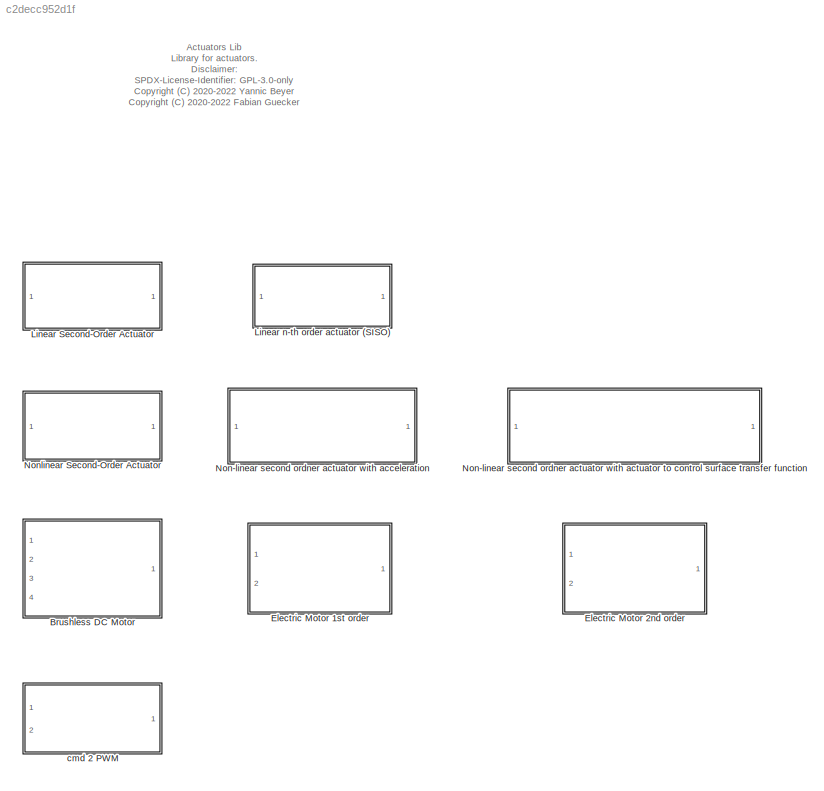
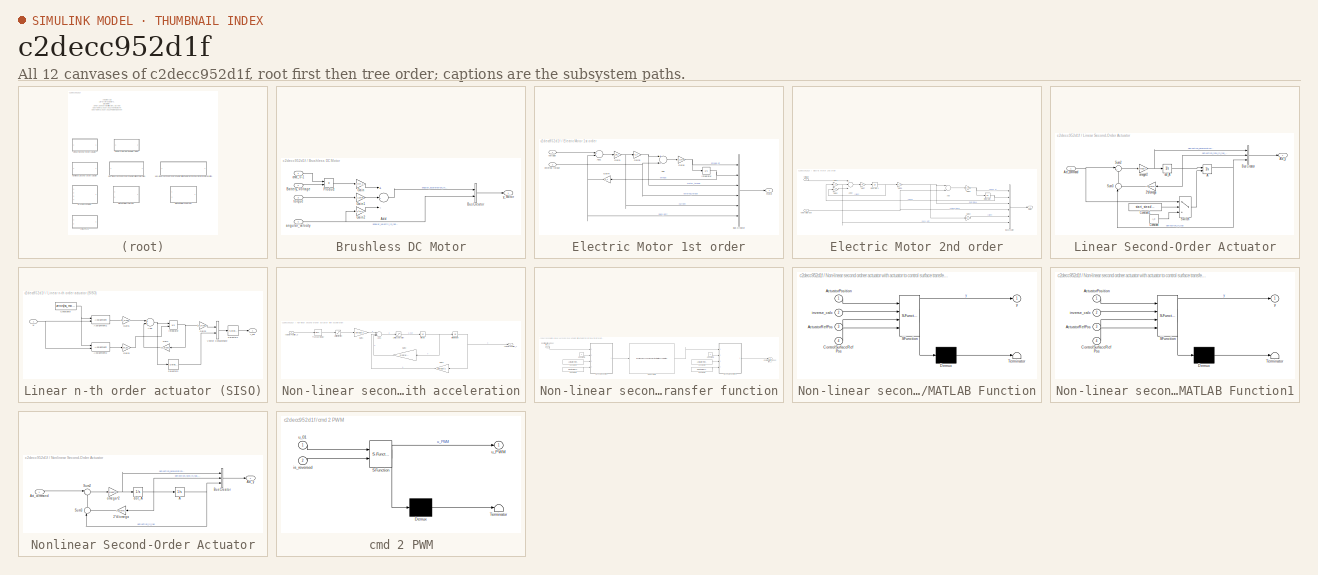
[diagram: thumbnail index - all 12 canvases of the model, root first then tree order]
MODEL slx_c2decc952d1f
KIND library
CONFIG AbsTol = auto
CONFIG EnableMultiTasking = off
CONFIG FixedStep = auto
CONFIG MaxStep = auto
CONFIG MinStep = auto
CONFIG RelTol = 1e-3
CONFIG SampleTimeConstraint = Unconstrained
CONFIG Solver = VariableStepAuto
CONFIG SolverName = VariableStepAuto
CONFIG StartTime = 0.0
CONFIG StopTime = 10.0
BLOCK [SubSystem] Brushless DC Motor
  Ports = [4, 1]
  RequestExecContextInheritance = off
BLOCK [Sum] Brushless DC Motor/Add
  InputSameDT = off
  Inputs = +--
  OutDataTypeStr = Inherit: Inherit via internal rule
  Ports = [3, 1]
  SaturateOnIntegerOverflow = off
BLOCK [Inport] Brushless DC Motor/Battery_Voltage
  IconDisplay = Port number
  Port = 2
BLOCK [BusCreator] Brushless DC Motor/Bus Creator
  DisplayOption = bar
  InheritFromInputs = on
  Inputs = 2
  Ports = [2, 1]
BLOCK [Gain] Brushless DC Motor/Gain
  Gain = K_T/R_i/J_prop
  OutDataTypeStr = Inherit: Inherit via internal rule
  ParamDataTypeStr = Inherit: Inherit via internal rule
  SaturateOnIntegerOverflow = off
BLOCK [Gain] Brushless DC Motor/Gain1
  Gain = 1/J_prop
  OutDataTypeStr = Inherit: Inherit via internal rule
  ParamDataTypeStr = Inherit: Inherit via internal rule
  SaturateOnIntegerOverflow = off
BLOCK [Gain] Brushless DC Motor/Gain2
  Gain = K_T^2/J_prop/R_i
  OutDataTypeStr = Inherit: Inherit via internal rule
  ParamDataTypeStr = Inherit: Inherit via internal rule
  SaturateOnIntegerOverflow = off
BLOCK [Product] Brushless DC Motor/Product
  InputSameDT = off
  OutDataTypeStr = Inherit: Inherit via internal rule
  Ports = [2, 1]
  RndMeth = Floor
  SaturateOnIntegerOverflow = off
BLOCK [Inport] Brushless DC Motor/angular_velocity
  IconDisplay = Port number
  Port = 4
BLOCK [Inport] Brushless DC Motor/cmd_0-1
  IconDisplay = Port number
BLOCK [Inport] Brushless DC Motor/torque
  IconDisplay = Port number
  Port = 3
BLOCK [Outport] Brushless DC Motor/y_Motor
  IconDisplay = Port number
BLOCK [SubSystem] Electric Motor 1st order
  Ports = [2, 1]
  RequestExecContextInheritance = off
BLOCK [Sum] Electric Motor 1st order/Add
  InputSameDT = off
  Inputs = +-
  OutDataTypeStr = Inherit: Inherit via internal rule
  Ports = [2, 1]
  SaturateOnIntegerOverflow = off
BLOCK [Sum] Electric Motor 1st order/Add1
  InputSameDT = off
  Inputs = +-
  OutDataTypeStr = Inherit: Inherit via internal rule
  Ports = [2, 1]
  SaturateOnIntegerOverflow = off
BLOCK [BusCreator] Electric Motor 1st order/Bus Creator
  DisplayOption = bar
  InheritFromInputs = on
  Inputs = 6
  Ports = [6, 1]
BLOCK [Gain] Electric Motor 1st order/Gain1
  Gain = 1/R_i
  OutDataTypeStr = Inherit: Inherit via internal rule
  ParamDataTypeStr = Inherit: Inherit via internal rule
  SaturateOnIntegerOverflow = off
BLOCK [Gain] Electric Motor 1st order/Gain4
  Gain = K_T
  OutDataTypeStr = Inherit: Inherit via internal rule
  ParamDataTypeStr = Inherit: Inherit via internal rule
  SaturateOnIntegerOverflow = off
BLOCK [Gain] Electric Motor 1st order/Gain5
  Gain = K_T
  OutDataTypeStr = Inherit: Inherit via internal rule
  ParamDataTypeStr = Inherit: Inherit via internal rule
  SaturateOnIntegerOverflow = off
BLOCK [Gain] Electric Motor 1st order/Gain6
  Gain = 1/J_prop
  OutDataTypeStr = Inherit: Inherit via internal rule
  ParamDataTypeStr = Inherit: Inherit via internal rule
  SaturateOnIntegerOverflow = off
BLOCK [Integrator] Electric Motor 1st order/Integrator
  InitialCondition = IC_omega
  LimitOutput = on
  LowerSaturationLimit = omega_min
  Ports = [1, 1]
  UpperSaturationLimit = omega_max
BLOCK [Inport] Electric Motor 1st order/external torque
  IconDisplay = Port number
  Port = 2
BLOCK [Outport] Electric Motor 1st order/motor
  IconDisplay = Port number
BLOCK [Inport] Electric Motor 1st order/voltage
  IconDisplay = Port number
BLOCK [SubSystem] Electric Motor 2nd order
  Ports = [2, 1]
  RequestExecContextInheritance = off
BLOCK [Sum] Electric Motor 2nd order/Add
  InputSameDT = off
  Inputs = +-
  OutDataTypeStr = Inherit: Inherit via internal rule
  Ports = [2, 1]
  SaturateOnIntegerOverflow = off
BLOCK [Sum] Electric Motor 2nd order/Add2
  InputSameDT = off
  Inputs = +--
  OutDataTypeStr = Inherit: Inherit via internal rule
  Ports = [3, 1]
  SaturateOnIntegerOverflow = off
BLOCK [BusCreator] Electric Motor 2nd order/Bus Creator
  DisplayOption = bar
  InheritFromInputs = on
  Inputs = 6
  Ports = [6, 1]
BLOCK [Gain] Electric Motor 2nd order/Gain2
  Gain = 1/K_T
  OutDataTypeStr = Inherit: Inherit via internal rule
  ParamDataTypeStr = Inherit: Inherit via internal rule
  SaturateOnIntegerOverflow = off
BLOCK [Gain] Electric Motor 2nd order/Gain5
  Gain = R_i
  OutDataTypeStr = Inherit: Inherit via internal rule
  ParamDataTypeStr = Inherit: Inherit via internal rule
  SaturateOnIntegerOverflow = off
BLOCK [Gain] Electric Motor 2nd order/Gain6
  Gain = 1/J_prop
  OutDataTypeStr = Inherit: Inherit via internal rule
  ParamDataTypeStr = Inherit: Inherit via internal rule
  SaturateOnIntegerOverflow = off
BLOCK [Gain] Electric Motor 2nd order/Gain7
  Gain = 1/L
  OutDataTypeStr = Inherit: Inherit via internal rule
  ParamDataTypeStr = Inherit: Inherit via internal rule
  SaturateOnIntegerOverflow = off
BLOCK [Gain] Electric Motor 2nd order/Gain8
  Gain = K_T
  OutDataTypeStr = Inherit: Inherit via internal rule
  ParamDataTypeStr = Inherit: Inherit via internal rule
  SaturateOnIntegerOverflow = off
BLOCK [Gain] Electric Motor 2nd order/Gain9
  Gain = K_T
  OutDataTypeStr = Inherit: Inherit via internal rule
  ParamDataTypeStr = Inherit: Inherit via internal rule
  SaturateOnIntegerOverflow = off
BLOCK [Integrator] Electric Motor 2nd order/Integrator
  InitialCondition = IC_omega
  LimitOutput = on
  LowerSaturationLimit = omega_min
  Ports = [1, 1]
  UpperSaturationLimit = omega_max
BLOCK [Integrator] Electric Motor 2nd order/Integrator1
  Ports = [1, 1]
BLOCK [Inport] Electric Motor 2nd order/external torque
  IconDisplay = Port number
  Port = 2
BLOCK [Outport] Electric Motor 2nd order/motor
  IconDisplay = Port number
BLOCK [Inport] Electric Motor 2nd order/voltage
  IconDisplay = Port number
BLOCK [SubSystem] Linear Second-Order Actuator
  Ports = [1, 1]
  RequestExecContextInheritance = off
BLOCK [Gain] Linear Second-Order Actuator/2*d//omega
  Gain = 2*d/omega
  OutDataTypeStr = Inherit: Inherit via internal rule
  ParamDataTypeStr = Inherit: Inherit via internal rule
  SaturateOnIntegerOverflow = off
BLOCK [Integrator] Linear Second-Order Actuator/A
  ContinuousStateAttributes = 'A'
  InitialCondition = A_0
  InitialConditionSource = external
  Ports = [2, 1]
BLOCK [Inport] Linear Second-Order Actuator/Act_command
  IconDisplay = Port number
BLOCK [Outport] Linear Second-Order Actuator/Act_y
  IconDisplay = Port number
BLOCK [BusCreator] Linear Second-Order Actuator/Bus Creator
  DisplayOption = bar
  InheritFromInputs = on
  Inputs = 3
  Ports = [3, 1]
BLOCK [Constant] Linear Second-Order Actuator/Constant
  Value = A_0
BLOCK [Constant] Linear Second-Order Actuator/Constant1
  Value = start_steady_state
BLOCK [Sum] Linear Second-Order Actuator/Sum2
  IconShape = round
  InputSameDT = off
  Inputs = |+-
  OutDataTypeStr = Inherit: Inherit via internal rule
  Ports = [2, 1]
  SaturateOnIntegerOverflow = off
BLOCK [Sum] Linear Second-Order Actuator/Sum3
  IconShape = round
  InputSameDT = off
  Inputs = |++
  OutDataTypeStr = Inherit: Inherit via internal rule
  Ports = [2, 1]
  SaturateOnIntegerOverflow = off
BLOCK [Switch] Linear Second-Order Actuator/Switch
  Criteria = u2 > Threshold
  InputSameDT = off
  SaturateOnIntegerOverflow = off
  ZeroCross = off
BLOCK [Integrator] Linear Second-Order Actuator/dot_A
  ContinuousStateAttributes = 'dot_A'
  InitialCondition = dot_A_0
  Ports = [1, 1]
BLOCK [Gain] Linear Second-Order Actuator/omega^2
  Gain = omega^2
  OutDataTypeStr = Inherit: Inherit via internal rule
  ParamDataTypeStr = Inherit: Inherit via internal rule
  SaturateOnIntegerOverflow = off
BLOCK [SubSystem] Linear n-th order actuator (SISO)
  Ports = [1, 1]
  RequestExecContextInheritance = off
BLOCK [Sum] Linear n-th order actuator (SISO)/Add
  InputSameDT = off
  OutDataTypeStr = Inherit: Inherit via internal rule
  Ports = [2, 1]
  SaturateOnIntegerOverflow = off
BLOCK [Assignment] Linear n-th order actuator (SISO)/Assignment1
  DiagnosticForDimensions = Warning
  IndexOptions = Index vector (dialog)
  Indices = ss_model.order
  OutputSizes = 1
  Ports = [2, 1]
BLOCK [Assignment] Linear n-th order actuator (SISO)/Assignment2
  DiagnosticForDimensions = Warning
  IndexOptions = Index vector (dialog)
  Indices = 1
  OutputSizes = 1
  Ports = [2, 1]
BLOCK [Constant] Linear n-th order actuator (SISO)/Constant8
  Value = zeros(ss_model.order,1)
  VectorParams1D = off
BLOCK [Gain] Linear n-th order actuator (SISO)/Gain
  Gain = ss_model.A
  Multiplication = Matrix(K*u)
  OutDataTypeStr = Inherit: Inherit via internal rule
  ParamDataTypeStr = Inherit: Inherit via internal rule
  SaturateOnIntegerOverflow = off
BLOCK [Gain] Linear n-th order actuator (SISO)/Gain1
  Gain = ss_model.B
  Multiplication = Matrix(K*u)
  OutDataTypeStr = Inherit: Inherit via internal rule
  ParamDataTypeStr = Inherit: Inherit via internal rule
  SaturateOnIntegerOverflow = off
BLOCK [Gain] Linear n-th order actuator (SISO)/Gain2
  Gain = ss_model.C
  Multiplication = Matrix(K*u)
  OutDataTypeStr = Inherit: Inherit via internal rule
  ParamDataTypeStr = Inherit: Inherit via internal rule
  SaturateOnIntegerOverflow = off
BLOCK [Gain] Linear n-th order actuator (SISO)/Gain3
  Gain = use_inital_value
  OutDataTypeStr = Inherit: Inherit via internal rule
  ParamDataTypeStr = Inherit: Inherit via internal rule
  SaturateOnIntegerOverflow = off
BLOCK [Integrator] Linear n-th order actuator (SISO)/Integrator
  InitialConditionSource = external
  Ports = [2, 1]
BLOCK [Selector] Linear n-th order actuator (SISO)/Selector1
  IndexOptions = Index vector (dialog)
  Indices = 1:min(output_order, ss_model.order+1)
  InputPortWidth = ss_model.order+1
  OutputSizes = 1
  Ports = [1, 1]
BLOCK [Selector] Linear n-th order actuator (SISO)/Selector2
  IndexOptions = Index vector (dialog)
  Indices = ss_model.order
  InputPortWidth = ss_model.order
  OutputSizes = 1
  Ports = [1, 1]
BLOCK [Concatenate] Linear n-th order actuator (SISO)/Vector Concatenate
  Ports = [2, 1]
BLOCK [Inport] Linear n-th order actuator (SISO)/w
  IconDisplay = Port number
BLOCK [Outport] Linear n-th order actuator (SISO)/y_out
  IconDisplay = Port number
BLOCK [SubSystem] Non-linear second ordner actuator with acceleration
  Ports = [1, 1]
  RequestExecContextInheritance = off
BLOCK [Inport] Non-linear second ordner actuator with acceleration/ActuatorPosition_u
  IconDisplay = Port number
BLOCK [Outport] Non-linear second ordner actuator with acceleration/ActuatorPosition_y
  IconDisplay = Port number
  VectorParamsAs1DForOutWhenUnconnected = on
BLOCK [Sum] Non-linear second ordner actuator with acceleration/Add1
  InputSameDT = off
  Inputs = +--
  OutDataTypeStr = Inherit: Inherit via internal rule
  Ports = [3, 1]
  SaturateOnIntegerOverflow = off
BLOCK [Gain] Non-linear second ordner actuator with acceleration/Gain 1
  Gain = omega^2
  OutDataTypeStr = Inherit: Inherit via internal rule
  ParamDataTypeStr = Inherit: Inherit via internal rule
  SaturateOnIntegerOverflow = off
BLOCK [Gain] Non-linear second ordner actuator with acceleration/Gain 2
  Gain = 2*zeta*omega
  OutDataTypeStr = Inherit: Inherit via internal rule
  ParamDataTypeStr = Inherit: Inherit via internal rule
  SaturateOnIntegerOverflow = off
BLOCK [Gain] Non-linear second ordner actuator with acceleration/Gain 3
  Gain = omega^2
  OutDataTypeStr = Inherit: Inherit via internal rule
  ParamDataTypeStr = Inherit: Inherit via internal rule
  SaturateOnIntegerOverflow = off
BLOCK [Saturate] Non-linear second ordner actuator with acceleration/Limit acceleration
  InputPortMap = u0
  LowerLimit = L2_neg
  Ports = [1, 1]
  UpperLimit = L2_pos
BLOCK [Saturate] Non-linear second ordner actuator with acceleration/Limit deflection
  InputPortMap = u0
  LowerLimit = L1_neg
  Ports = [1, 1]
  UpperLimit = L1_pos
BLOCK [TransportDelay] Non-linear second ordner actuator with acceleration/Transport Delay
  DelayTime = dead_time
  InitialOutput = inital_position
  Ports = [1, 1]
BLOCK [Integrator] Non-linear second ordner actuator with acceleration/limit deflection
  InitialCondition = inital_position
  LimitOutput = on
  LowerSaturationLimit = L1_neg
  Ports = [1, 1]
  UpperSaturationLimit = L1_pos
BLOCK [Integrator] Non-linear second ordner actuator with acceleration/limit rate
  InitialCondition = inital_velocity
  LimitOutput = on
  LowerSaturationLimit = L3_neg
  Ports = [1, 1]
  UpperSaturationLimit = L3_pos
BLOCK [SubSystem] Non-linear second ordner actuator with actuator to control surface transfer function
  Ports = [1, 1]
  RequestExecContextInheritance = off
BLOCK [Constant] Non-linear second ordner actuator with actuator to control surface transfer function/Constant1
  Value = 0
BLOCK [Constant] Non-linear second ordner actuator with actuator to control surface transfer function/Constant2
BLOCK [Constant] Non-linear second ordner actuator with actuator to control surface transfer function/Constant3
  Value = ActuatorRefPosition
BLOCK [Constant] Non-linear second ordner actuator with actuator to control surface transfer function/Constant4
  Value = ControlSurfaceRefPosition
BLOCK [Constant] Non-linear second ordner actuator with actuator to control surface transfer function/Constant5
  Value = ActuatorRefPosition
BLOCK [Constant] Non-linear second ordner actuator with actuator to control surface transfer function/Constant6
  Value = ControlSurfaceRefPosition
BLOCK [Inport] Non-linear second ordner actuator with actuator to control surface transfer function/ControlSurfacePosition_u
  IconDisplay = Port number
BLOCK [Outport] Non-linear second ordner actuator with actuator to control surface transfer function/ControlSurfacePosition_y
  IconDisplay = Port number
  VectorParamsAs1DForOutWhenUnconnected = on
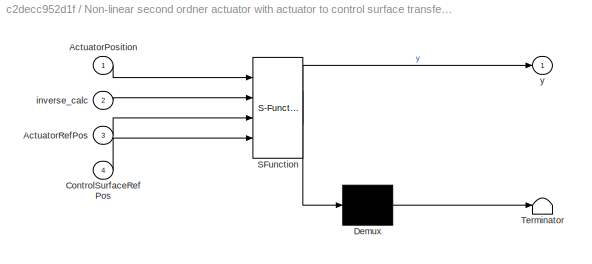
BLOCK [SubSystem] Non-linear second ordner actuator with actuator to control surface transfer function/MATLAB Function
  ErrorFcn = Stateflow.Translate.translate
  PermitHierarchicalResolution = ExplicitOnly
  Ports = [4, 1]
  RequestExecContextInheritance = off
  SFBlockType = MATLAB Function
  TreatAsAtomicUnit = on
BLOCK [Demux] Non-linear second ordner actuator with actuator to control surface transfer function/MATLAB Function/ Demux 
  Outputs = 1
  Ports = [1, 1]
BLOCK [S-Function] Non-linear second ordner actuator with actuator to control surface transfer function/MATLAB Function/ SFunction 
  EnableBusSupport = off
  FunctionName = sf_sfun
  PortCounts = [4 2]
  Ports = [4, 2]
  SFcnIsStateOwnerBlock = off
  SFunctionDeploymentMode = off
  Tag = Stateflow S-Function actuators_lib 1
BLOCK [Terminator] Non-linear second ordner actuator with actuator to control surface transfer function/MATLAB Function/ Terminator 
BLOCK [Inport] Non-linear second ordner actuator with actuator to control surface transfer function/MATLAB Function/ActuatorPosition
  IconDisplay = Port number
BLOCK [Inport] Non-linear second ordner actuator with actuator to control surface transfer function/MATLAB Function/ActuatorRefPos
  IconDisplay = Port number
  Port = 3
BLOCK [Inport] Non-linear second ordner actuator with actuator to control surface transfer function/MATLAB Function/ControlSurfaceRefPos
  IconDisplay = Port number
  Port = 4
BLOCK [Inport] Non-linear second ordner actuator with actuator to control surface transfer function/MATLAB Function/inverse_calc
  IconDisplay = Port number
  Port = 2
BLOCK [Outport] Non-linear second ordner actuator with actuator to control surface transfer function/MATLAB Function/y
  IconDisplay = Port number
  VectorParamsAs1DForOutWhenUnconnected = on
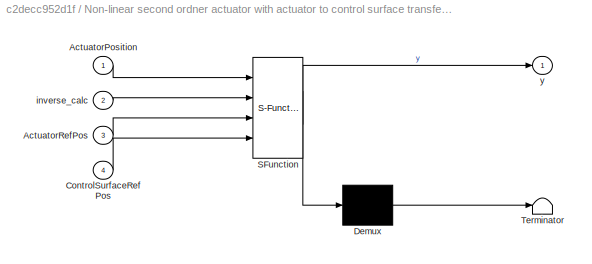
BLOCK [SubSystem] Non-linear second ordner actuator with actuator to control surface transfer function/MATLAB Function1
  ErrorFcn = Stateflow.Translate.translate
  PermitHierarchicalResolution = ExplicitOnly
  Ports = [4, 1]
  RequestExecContextInheritance = off
  SFBlockType = MATLAB Function
  TreatAsAtomicUnit = on
BLOCK [Demux] Non-linear second ordner actuator with actuator to control surface transfer function/MATLAB Function1/ Demux 
  Outputs = 1
  Ports = [1, 1]
BLOCK [S-Function] Non-linear second ordner actuator with actuator to control surface transfer function/MATLAB Function1/ SFunction 
  EnableBusSupport = off
  FunctionName = sf_sfun
  PortCounts = [4 2]
  Ports = [4, 2]
  SFcnIsStateOwnerBlock = off
  SFunctionDeploymentMode = off
  Tag = Stateflow S-Function actuators_lib 3
BLOCK [Terminator] Non-linear second ordner actuator with actuator to control surface transfer function/MATLAB Function1/ Terminator 
BLOCK [Inport] Non-linear second ordner actuator with actuator to control surface transfer function/MATLAB Function1/ActuatorPosition
  IconDisplay = Port number
BLOCK [Inport] Non-linear second ordner actuator with actuator to control surface transfer function/MATLAB Function1/ActuatorRefPos
  IconDisplay = Port number
  Port = 3
BLOCK [Inport] Non-linear second ordner actuator with actuator to control surface transfer function/MATLAB Function1/ControlSurfaceRefPos
  IconDisplay = Port number
  Port = 4
BLOCK [Inport] Non-linear second ordner actuator with actuator to control surface transfer function/MATLAB Function1/inverse_calc
  IconDisplay = Port number
  Port = 2
BLOCK [Outport] Non-linear second ordner actuator with actuator to control surface transfer function/MATLAB Function1/y
  IconDisplay = Port number
  VectorParamsAs1DForOutWhenUnconnected = on
BLOCK [Reference] Non-linear second ordner actuator with actuator to control surface transfer function/Subsystem  REF=$bdroot/Non-linear second ordner actuator with acceleration
  Ports = [1, 1]
  SourceBlock = $bdroot/Non-linear second ordner actuator with acceleration
BLOCK [SubSystem] Nonlinear Second-Order Actuator
  Ports = [1, 1]
  RequestExecContextInheritance = off
BLOCK [Gain] Nonlinear Second-Order Actuator/2*d//omega
  Gain = 2*d/omega
  OutDataTypeStr = Inherit: Inherit via internal rule
  ParamDataTypeStr = Inherit: Inherit via internal rule
  SaturateOnIntegerOverflow = off
BLOCK [Integrator] Nonlinear Second-Order Actuator/A
  ContinuousStateAttributes = 'A'
  InitialCondition = A_0
  LimitOutput = on
  LowerSaturationLimit = A_min
  Ports = [1, 1]
  UpperSaturationLimit = A_max
BLOCK [Inport] Nonlinear Second-Order Actuator/Act_command
  IconDisplay = Port number
BLOCK [Outport] Nonlinear Second-Order Actuator/Act_y
  IconDisplay = Port number
BLOCK [BusCreator] Nonlinear Second-Order Actuator/Bus Creator
  DisplayOption = bar
  InheritFromInputs = on
  Inputs = 3
  Ports = [3, 1]
BLOCK [Sum] Nonlinear Second-Order Actuator/Sum2
  IconShape = round
  InputSameDT = off
  Inputs = |+-
  OutDataTypeStr = Inherit: Inherit via internal rule
  Ports = [2, 1]
  SaturateOnIntegerOverflow = off
BLOCK [Sum] Nonlinear Second-Order Actuator/Sum3
  IconShape = round
  InputSameDT = off
  Inputs = |++
  OutDataTypeStr = Inherit: Inherit via internal rule
  Ports = [2, 1]
  SaturateOnIntegerOverflow = off
BLOCK [Integrator] Nonlinear Second-Order Actuator/dot_A
  ContinuousStateAttributes = 'dot_A'
  InitialCondition = dot_A_0
  LimitOutput = on
  LowerSaturationLimit = dot_A_min
  Ports = [1, 1]
  UpperSaturationLimit = dot_A_max
BLOCK [Gain] Nonlinear Second-Order Actuator/omega^2
  Gain = omega^2
  OutDataTypeStr = Inherit: Inherit via internal rule
  ParamDataTypeStr = Inherit: Inherit via internal rule
  SaturateOnIntegerOverflow = off
BLOCK [SubSystem] cmd 2 PWM
  ErrorFcn = Stateflow.Translate.translate
  PermitHierarchicalResolution = ExplicitOnly
  Ports = [2, 1]
  RequestExecContextInheritance = off
  SFBlockType = MATLAB Function
  TreatAsAtomicUnit = on
BLOCK [Demux] cmd 2 PWM/ Demux 
  Outputs = 1
  Ports = [1, 1]
BLOCK [S-Function] cmd 2 PWM/ SFunction 
  EnableBusSupport = off
  FunctionName = sf_sfun
  PortCounts = [2 2]
  Ports = [2, 2]
  SFcnIsStateOwnerBlock = off
  SFunctionDeploymentMode = off
  Tag = Stateflow S-Function actuators_lib 2
BLOCK [Terminator] cmd 2 PWM/ Terminator 
BLOCK [Inport] cmd 2 PWM/is_reversed
  IconDisplay = Port number
  Port = 2
BLOCK [Inport] cmd 2 PWM/u_01
  IconDisplay = Port number
BLOCK [Outport] cmd 2 PWM/u_PWM
  IconDisplay = Port number
ANNOTATION (root): Actuators Lib Library for actuators. Disclaimer: SPDX-License-Identifier: GPL-3.0-only <copyright redacted>
LINE Brushless DC Motor/Add:1 -> Brushless DC Motor/Bus Creator:1
LINE Brushless DC Motor/Battery_Voltage:1 -> Brushless DC Motor/Product:2
LINE Brushless DC Motor/Bus Creator:1 -> Brushless DC Motor/y_Motor:1
LINE Brushless DC Motor/Gain1:1 -> Brushless DC Motor/Add:2
LINE Brushless DC Motor/Gain2:1 -> Brushless DC Motor/Add:3
LINE Brushless DC Motor/Gain:1 -> Brushless DC Motor/Add:1
LINE Brushless DC Motor/Product:1 -> Brushless DC Motor/Gain:1
NET Brushless DC Motor/angular_velocity:1 -> Brushless DC Motor/Bus Creator:2, Brushless DC Motor/Gain2:1
LINE Brushless DC Motor/cmd_0-1:1 -> Brushless DC Motor/Product:1
LINE Brushless DC Motor/torque:1 -> Brushless DC Motor/Gain1:1
LINE Electric Motor 1st order/Add1:1 -> Electric Motor 1st order/Gain1:1
LINE Electric Motor 1st order/Add:1 -> Electric Motor 1st order/Gain6:1
LINE Electric Motor 1st order/Bus Creator:1 -> Electric Motor 1st order/motor:1
NET Electric Motor 1st order/Gain1:1 -> Electric Motor 1st order/Bus Creator:5, Electric Motor 1st order/Gain5:1
NET Electric Motor 1st order/Gain4:1 -> Electric Motor 1st order/Add1:2, Electric Motor 1st order/Bus Creator:6
NET Electric Motor 1st order/Gain5:1 -> Electric Motor 1st order/Add:1, Electric Motor 1st order/Bus Creator:3
NET Electric Motor 1st order/Gain6:1 -> Electric Motor 1st order/Bus Creator:1, Electric Motor 1st order/Integrator:1
NET Electric Motor 1st order/Integrator:1 -> Electric Motor 1st order/Bus Creator:2, Electric Motor 1st order/Gain4:1
NET Electric Motor 1st order/external torque:1 -> Electric Motor 1st order/Add:2, Electric Motor 1st order/Bus Creator:4
LINE Electric Motor 1st order/voltage:1 -> Electric Motor 1st order/Add1:1
LINE Electric Motor 2nd order/Add2:1 -> Electric Motor 2nd order/Gain7:1
LINE Electric Motor 2nd order/Add:1 -> Electric Motor 2nd order/Gain6:1
LINE Electric Motor 2nd order/Bus Creator:1 -> Electric Motor 2nd order/motor:1
LINE Electric Motor 2nd order/Gain2:1 -> Electric Motor 2nd order/Bus Creator:5
LINE Electric Motor 2nd order/Gain5:1 -> Electric Motor 2nd order/Add2:3
NET Electric Motor 2nd order/Gain6:1 -> Electric Motor 2nd order/Bus Creator:1, Electric Motor 2nd order/Integrator:1
LINE Electric Motor 2nd order/Gain7:1 -> Electric Motor 2nd order/Integrator1:1
NET Electric Motor 2nd order/Gain8:1 -> Electric Motor 2nd order/Add2:2, Electric Motor 2nd order/Bus Creator:6
NET Electric Motor 2nd order/Gain9:1 -> Electric Motor 2nd order/Add:1, Electric Motor 2nd order/Bus Creator:3, Electric Motor 2nd order/Gain2:1
NET Electric Motor 2nd order/Integrator1:1 -> Electric Motor 2nd order/Gain5:1, Electric Motor 2nd order/Gain9:1
NET Electric Motor 2nd order/Integrator:1 -> Electric Motor 2nd order/Bus Creator:2, Electric Motor 2nd order/Gain8:1
NET Electric Motor 2nd order/external torque:1 -> Electric Motor 2nd order/Add:2, Electric Motor 2nd order/Bus Creator:4
LINE Electric Motor 2nd order/voltage:1 -> Electric Motor 2nd order/Add2:1
LINE Linear Second-Order Actuator/2*d//omega:1 -> Linear Second-Order Actuator/Sum3:2
NET Linear Second-Order Actuator/A:1 -> Linear Second-Order Actuator/Bus Creator:3, Linear Second-Order Actuator/Sum3:1
NET Linear Second-Order Actuator/Act_command:1 -> Linear Second-Order Actuator/Sum2:1, Linear Second-Order Actuator/Switch:1
LINE Linear Second-Order Actuator/Bus Creator:1 -> Linear Second-Order Actuator/Act_y:1
LINE Linear Second-Order Actuator/Constant1:1 -> Linear Second-Order Actuator/Switch:2
LINE Linear Second-Order Actuator/Constant:1 -> Linear Second-Order Actuator/Switch:3
LINE Linear Second-Order Actuator/Sum2:1 -> Linear Second-Order Actuator/omega^2:1
LINE Linear Second-Order Actuator/Sum3:1 -> Linear Second-Order Actuator/Sum2:2
LINE Linear Second-Order Actuator/Switch:1 -> Linear Second-Order Actuator/A:2
NET Linear Second-Order Actuator/dot_A:1 -> Linear Second-Order Actuator/2*d//omega:1, Linear Second-Order Actuator/A:1, Linear Second-Order Actuator/Bus Creator:2
NET Linear Second-Order Actuator/omega^2:1 -> Linear Second-Order Actuator/Bus Creator:1, Linear Second-Order Actuator/dot_A:1
NET Linear n-th order actuator (SISO)/Add:1 -> Linear n-th order actuator (SISO)/Integrator:1, Linear n-th order actuator (SISO)/Selector2:1
LINE Linear n-th order actuator (SISO)/Assignment1:1 -> Linear n-th order actuator (SISO)/Gain1:1
LINE Linear n-th order actuator (SISO)/Assignment2:1 -> Linear n-th order actuator (SISO)/Gain3:1
NET Linear n-th order actuator (SISO)/Constant8:1 -> Linear n-th order actuator (SISO)/Assignment1:1, Linear n-th order actuator (SISO)/Assignment2:1
LINE Linear n-th order actuator (SISO)/Gain1:1 -> Linear n-th order actuator (SISO)/Add:1
LINE Linear n-th order actuator (SISO)/Gain2:1 -> Linear n-th order actuator (SISO)/Vector Concatenate:1
LINE Linear n-th order actuator (SISO)/Gain3:1 -> Linear n-th order actuator (SISO)/Integrator:2
LINE Linear n-th order actuator (SISO)/Gain:1 -> Linear n-th order actuator (SISO)/Add:2
NET Linear n-th order actuator (SISO)/Integrator:1 -> Linear n-th order actuator (SISO)/Gain2:1, Linear n-th order actuator (SISO)/Gain:1
LINE Linear n-th order actuator (SISO)/Selector1:1 -> Linear n-th order actuator (SISO)/y_out:1
LINE Linear n-th order actuator (SISO)/Selector2:1 -> Linear n-th order actuator (SISO)/Vector Concatenate:2
LINE Linear n-th order actuator (SISO)/Vector Concatenate:1 -> Linear n-th order actuator (SISO)/Selector1:1
NET Linear n-th order actuator (SISO)/w:1 -> Linear n-th order actuator (SISO)/Assignment1:2, Linear n-th order actuator (SISO)/Assignment2:2
LINE Non-linear second ordner actuator with acceleration/ActuatorPosition_u:1 -> Non-linear second ordner actuator with acceleration/Transport Delay:1
LINE Non-linear second ordner actuator with acceleration/Add1:1 -> Non-linear second ordner actuator with acceleration/Limit acceleration:1
LINE Non-linear second ordner actuator with acceleration/Gain 1:1 -> Non-linear second ordner actuator with acceleration/Add1:1
LINE Non-linear second ordner actuator with acceleration/Gain 2:1 -> Non-linear second ordner actuator with acceleration/Add1:3
LINE Non-linear second ordner actuator with acceleration/Gain 3:1 -> Non-linear second ordner actuator with acceleration/Add1:2
LINE Non-linear second ordner actuator with acceleration/Limit acceleration:1 -> Non-linear second ordner actuator with acceleration/limit rate:1
LINE Non-linear second ordner actuator with acceleration/Limit deflection:1 -> Non-linear second ordner actuator with acceleration/Gain 1:1
LINE Non-linear second ordner actuator with acceleration/Transport Delay:1 -> Non-linear second ordner actuator with acceleration/Limit deflection:1
NET Non-linear second ordner actuator with acceleration/limit deflection:1 -> Non-linear second ordner actuator with acceleration/ActuatorPosition_y:1, Non-linear second ordner actuator with acceleration/Gain 3:1
NET Non-linear second ordner actuator with acceleration/limit rate:1 -> Non-linear second ordner actuator with acceleration/Gain 2:1, Non-linear second ordner actuator with acceleration/limit deflection:1
LINE Non-linear second ordner actuator with actuator to control surface transfer function/Constant1:1 -> Non-linear second ordner actuator with actuator to control surface transfer function/MATLAB Function1:2
LINE Non-linear second ordner actuator with actuator to control surface transfer function/Constant2:1 -> Non-linear second ordner actuator with actuator to control surface transfer function/MATLAB Function:2
LINE Non-linear second ordner actuator with actuator to control surface transfer function/Constant3:1 -> Non-linear second ordner actuator with actuator to control surface transfer function/MATLAB Function:3
LINE Non-linear second ordner actuator with actuator to control surface transfer function/Constant4:1 -> Non-linear second ordner actuator with actuator to control surface transfer function/MATLAB Function:4
LINE Non-linear second ordner actuator with actuator to control surface transfer function/Constant5:1 -> Non-linear second ordner actuator with actuator to control surface transfer function/MATLAB Function1:3
LINE Non-linear second ordner actuator with actuator to control surface transfer function/Constant6:1 -> Non-linear second ordner actuator with actuator to control surface transfer function/MATLAB Function1:4
LINE Non-linear second ordner actuator with actuator to control surface transfer function/ControlSurfacePosition_u:1 -> Non-linear second ordner actuator with actuator to control surface transfer function/MATLAB Function:1
LINE Non-linear second ordner actuator with actuator to control surface transfer function/MATLAB Function1:1 -> Non-linear second ordner actuator with actuator to control surface transfer function/ControlSurfacePosition_y:1
LINE Non-linear second ordner actuator with actuator to control surface transfer function/MATLAB Function:1 -> Non-linear second ordner actuator with actuator to control surface transfer function/Subsystem:1
LINE Non-linear second ordner actuator with actuator to control surface transfer function/Subsystem:1 -> Non-linear second ordner actuator with actuator to control surface transfer function/MATLAB Function1:1
LINE Nonlinear Second-Order Actuator/2*d//omega:1 -> Nonlinear Second-Order Actuator/Sum3:2
NET Nonlinear Second-Order Actuator/A:1 -> Nonlinear Second-Order Actuator/Bus Creator:3, Nonlinear Second-Order Actuator/Sum3:1
LINE Nonlinear Second-Order Actuator/Act_command:1 -> Nonlinear Second-Order Actuator/Sum2:1
LINE Nonlinear Second-Order Actuator/Bus Creator:1 -> Nonlinear Second-Order Actuator/Act_y:1
LINE Nonlinear Second-Order Actuator/Sum2:1 -> Nonlinear Second-Order Actuator/omega^2:1
LINE Nonlinear Second-Order Actuator/Sum3:1 -> Nonlinear Second-Order Actuator/Sum2:2
NET Nonlinear Second-Order Actuator/dot_A:1 -> Nonlinear Second-Order Actuator/2*d//omega:1, Nonlinear Second-Order Actuator/A:1, Nonlinear Second-Order Actuator/Bus Creator:2
NET Nonlinear Second-Order Actuator/omega^2:1 -> Nonlinear Second-Order Actuator/Bus Creator:1, Nonlinear Second-Order Actuator/dot_A:1
note: NET lines group one-source signal fan-out (src -> all destinations, sorted); 1:1 wires keep LINE
CHART Non-linear second ordner actuator with actuator to control surface transfer function/MATLAB Function states=1 transitions=1
  STATE_LABEL 'eML_blk_kernel()'
  STATE_LABEL 'SCRIPT:\nfunction y = fcn(ActuatorPosition, inverse_calc, ActuatorRefPos, ControlSurfaceRefPos)\n\ny = mapActuatorToControlSurface(ActuatorPosition, inverse_calc, ActuatorRefPos, ControlSurfaceRefPos);\n'
CHART cmd 2 PWM states=1 transitions=1
  STATE_LABEL 'eML_blk_kernel()'
  STATE_LABEL 'SCRIPT:\nfunction u_PWM = fcn(u_01,is_reversed) %codegen\n    u_PWM = cmd2PWM(u_01,is_reversed);\nend'
CHART Non-linear second ordner actuator with actuator to control surface transfer function/MATLAB Function1 states=1 transitions=1
  STATE_LABEL 'eML_blk_kernel()'
  STATE_LABEL 'SCRIPT:\nfunction y = fcn(ActuatorPosition, inverse_calc, ActuatorRefPos, ControlSurfaceRefPos)\n\ny = mapActuatorToControlSurface(ActuatorPosition, inverse_calc, ActuatorRefPos, ControlSurfaceRefPos);\n'
